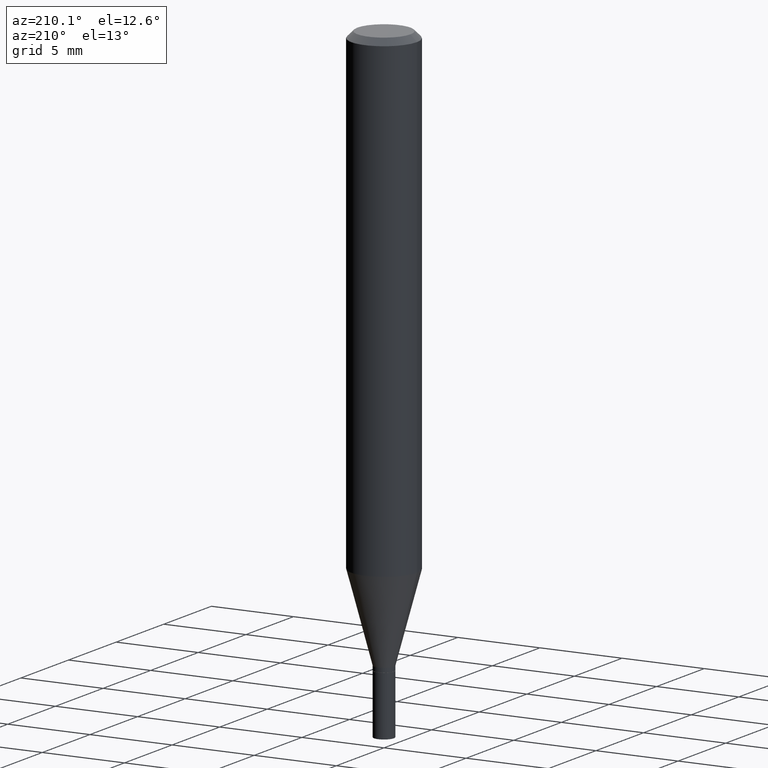
[diagram: clean part render]
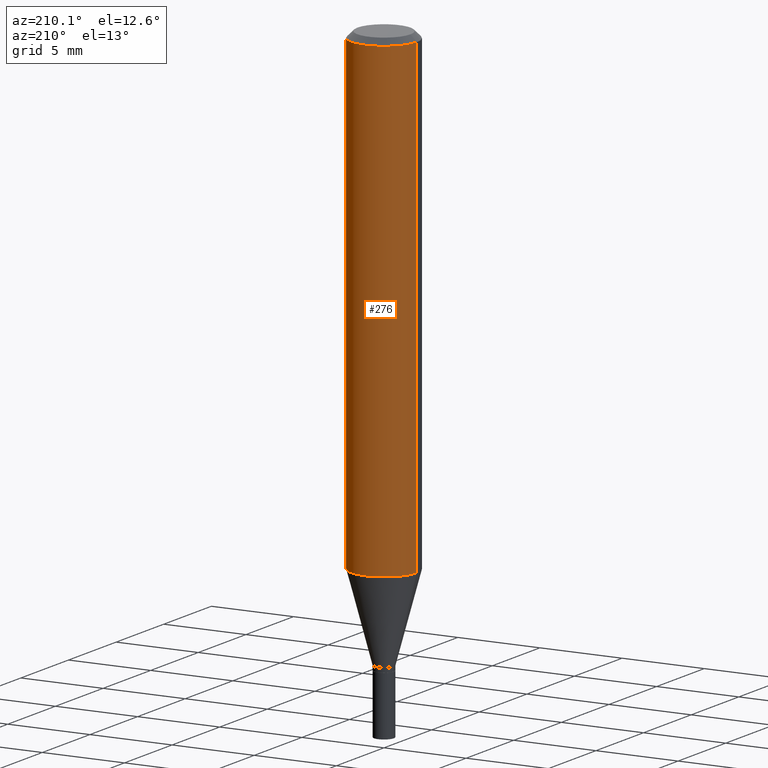
[diagram: same view with one face highlighted and labeled with its STEP entity id]
A machine part, auxiliary view. The second image highlights one B-rep face of the part: STEP entity #276.
In plain terms, the highlighted cylindrical surface (partial cylindrical patch) has radius 2.0002 mm, axis along (-0, 0, 1).
Its self-contained STEP definition (entity closure, byte-faithful):
#3 = CARTESIAN_POINT ( 'NONE',  ( -0.07875000000000000056, -3.428338666223679315E-15, -1.142177397962576890 ) ) ;
#4 = EDGE_CURVE ( 'NONE', #78, #345, #380, .T. ) ;
#5 = DIRECTION ( 'NONE',  ( 1.000000000000000000, -6.982962677686268288E-15, 0.000000000000000000 ) ) ;
#7 = DIRECTION ( 'NONE',  ( -2.445468806185136597E-29, 3.491481338843145583E-15, 1.000000000000000000 ) ) ;
#25 = AXIS2_PLACEMENT_3D ( 'NONE', #115, #155, #5 ) ;
#54 = EDGE_CURVE ( 'NONE', #359, #282, #249, .T. ) ;
#70 = CYLINDRICAL_SURFACE ( 'NONE', #349, 0.07875000000000000056 ) ;
#78 = VERTEX_POINT ( 'NONE', #401 ) ;
#106 = DIRECTION ( 'NONE',  ( 1.000000000000000000, -6.982962677686265922E-15, 4.876176775795935232E-29 ) ) ;
#115 = CARTESIAN_POINT ( 'NONE',  ( 2.793159197847188577E-29, -3.987891070634758511E-15, -1.142177397962576890 ) ) ;
#122 = DIRECTION ( 'NONE',  ( -2.445468806185136877E-29, 3.491481338843145188E-15, 1.000000000000000000 ) ) ;
#143 = EDGE_CURVE ( 'NONE', #78, #359, #407, .T. ) ;
#146 = CARTESIAN_POINT ( 'NONE',  ( -0.07875000000000000056, -1.460579240947623994E-15, -0.01499999999999999944 ) ) ;
#151 = CARTESIAN_POINT ( 'NONE',  ( -0.07875000000000000056, 5.595524044110789003E-16, -3.873661383575737792E-30 ) ) ;
#155 = DIRECTION ( 'NONE',  ( -2.445468806185136597E-29, 3.491481338843145583E-15, 1.000000000000000000 ) ) ;
#170 = CARTESIAN_POINT ( 'NONE',  ( 0.07875000000000000056, -5.499083108677934443E-16, 3.839989210939299016E-30 ) ) ;
#171 = CARTESIAN_POINT ( 'NONE',  ( 0.000000000000000000, 0.000000000000000000, 0.000000000000000000 ) ) ;
#174 = LINE ( 'NONE', #151, #289 ) ;
#192 = VECTOR ( 'NONE', #122, 39.37007874015748143 ) ;
#246 = DIRECTION ( 'NONE',  ( -2.445468806185136877E-29, 3.491481338843145188E-15, 1.000000000000000000 ) ) ;
#249 = CIRCLE ( 'NONE', #433, 0.07875000000000000056 ) ;
#276 = ADVANCED_FACE ( 'NONE', ( #389 ), #70, .T. ) ;
#282 = VERTEX_POINT ( 'NONE', #146 ) ;
#289 = VECTOR ( 'NONE', #246, 39.37007874015748143 ) ;
#291 = DIRECTION ( 'NONE',  ( -2.445468806185136597E-29, 3.491481338843145583E-15, 1.000000000000000000 ) ) ;
#312 = EDGE_CURVE ( 'NONE', #345, #282, #174, .T. ) ;
#313 = ORIENTED_EDGE ( 'NONE', *, *, #54, .F. ) ;
#334 = EDGE_LOOP ( 'NONE', ( #458, #448, #313, #426 ) ) ;
#345 = VERTEX_POINT ( 'NONE', #3 ) ;
#349 = AXIS2_PLACEMENT_3D ( 'NONE', #171, #7, #106 ) ;
#359 = VERTEX_POINT ( 'NONE', #429 ) ;
#380 = CIRCLE ( 'NONE', #25, 0.07875000000000000056 ) ;
#389 = FACE_OUTER_BOUND ( 'NONE', #334, .T. ) ;
#397 = CARTESIAN_POINT ( 'NONE',  ( 3.668203209277705088E-31, -5.237222008264718399E-17, -0.01499999999999999944 ) ) ;
#401 = CARTESIAN_POINT ( 'NONE',  ( 0.07875000000000000056, -4.537799381502551857E-15, -1.142177397962576890 ) ) ;
#407 = LINE ( 'NONE', #170, #192 ) ;
#426 = ORIENTED_EDGE ( 'NONE', *, *, #143, .F. ) ;
#429 = CARTESIAN_POINT ( 'NONE',  ( 0.07875000000000000056, -6.022805309504406221E-16, -0.01499999999999999944 ) ) ;
#433 = AXIS2_PLACEMENT_3D ( 'NONE', #397, #291, #435 ) ;
#435 = DIRECTION ( 'NONE',  ( 1.000000000000000000, -6.982962677686265922E-15, 0.000000000000000000 ) ) ;
#448 = ORIENTED_EDGE ( 'NONE', *, *, #312, .T. ) ;
#458 = ORIENTED_EDGE ( 'NONE', *, *, #4, .T. ) ;